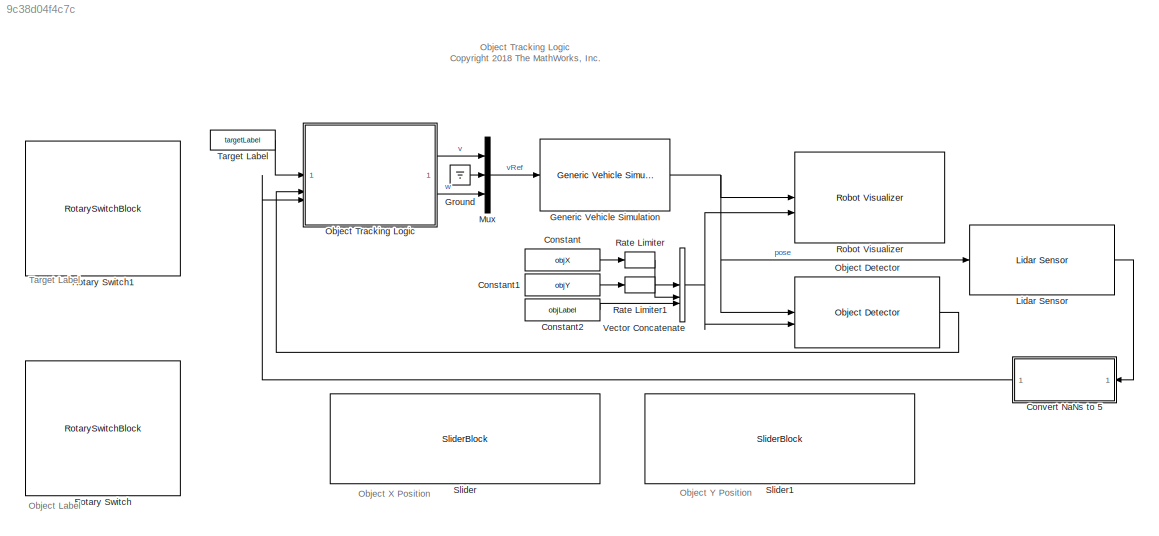
MODEL slx_9c38d04f4c7c
KIND model
CONFIG AbsTol = auto
CONFIG EnableMultiTasking = on
CONFIG FixedStep = 0.01
CONFIG MaxStep = auto
CONFIG MinStep = auto
CONFIG PreLoadFcn = % Simulation parameters\nload exampleMap\nsampleTime = 0.05;\n\n% Object Detector parameters\nobjX = 4;\nobjY = 4;\ntargetLabel = 1;\nobjLabel = 1;\nobjDetectorOffset = [0 0];\nobjDetectorAngle = 0;\nobjDetectorFOV = pi/3;\nobjDetectorRange = 5;\nobjDetectorColors = [1 0 0;0 1 0;0 0 1];\nobjDetectorMaxHits = 3;
CONFIG RelTol = 1e-3
CONFIG SampleTimeConstraint = Unconstrained
CONFIG SolverName = VariableStepAuto
CONFIG StartTime = 0.0
CONFIG StopTime = inf
BLOCK [Constant] Constant
  Value = objX
BLOCK [Constant] Constant1
  Value = objY
BLOCK [Constant] Constant2
  Value = objLabel
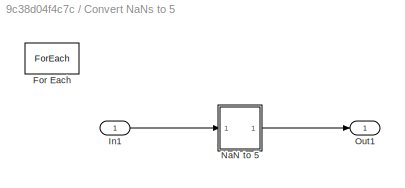
BLOCK [SubSystem] Convert NaNs to 5
  TreatAsAtomicUnit = on
BLOCK [ForEach] Convert NaNs to 5/For Each
  DisableCoverage = on
BLOCK [Inport] Convert NaNs to 5/In1
  Partition = on
  PartitionDimension = 1
  PartitionOffset = 0
  PartitionWidth = 1
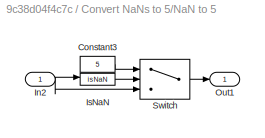
BLOCK [SubSystem] Convert NaNs to 5/NaN to 5
BLOCK [Constant] Convert NaNs to 5/NaN to 5/Constant3
  Value = 5
BLOCK [Inport] Convert NaNs to 5/NaN to 5/In2
BLOCK [RelationalOperator] Convert NaNs to 5/NaN to 5/IsNaN
  InputSameDT = off
  Operator = isNaN
  OutDataTypeStr = boolean
  RndMeth = Simplest
BLOCK [Outport] Convert NaNs to 5/NaN to 5/Out1
BLOCK [Switch] Convert NaNs to 5/NaN to 5/Switch
  Criteria = u2 ~= 0
  InputSameDT = off
  SaturateOnIntegerOverflow = off
BLOCK [Outport] Convert NaNs to 5/Out1
  ConcatenationDimension = 1
BLOCK [Reference] Generic Vehicle Simulation  REF=mobileRoboticsLib/Utilities/Generic Vehicle Simulation
  SourceBlock = mobileRoboticsLib/Utilities/Generic Vehicle Simulation
  SourceProductName = Mobile Robotics Simulation Toolbox
  SourceType = Generic Vehicle Simulation
BLOCK [Ground] Ground
BLOCK [Reference] Lidar Sensor  REF=mobileRoboticsLib/Environments/Lidar Sensor
  SourceBlock = mobileRoboticsLib/Environments/Lidar Sensor
  SourceProductName = Mobile Robotics Simulation Toolbox
  SourceType = LidarSensor
BLOCK [Mux] Mux
  DisplayOption = bar
  Inputs = 3
BLOCK [Reference] Object Detector  REF=mobileRoboticsLib/Environments/Object Detector
  SourceBlock = mobileRoboticsLib/Environments/Object Detector
  SourceProductName = Mobile Robotics Simulation Toolbox
  SourceType = ObjectDetector
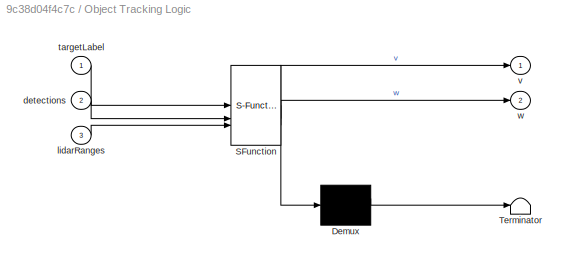
BLOCK [SubSystem] Object Tracking Logic
  ErrorFcn = Stateflow.Translate.translate
  PermitHierarchicalResolution = ExplicitOnly
  PortSchema = {"entries":[{"content":{"sides":[{"content":{"connectorIds":["In1","In3","In2"]},"type":"ConnectorPlacement.EquallySpacedRectSide","uuid":"378f4631-2ce8-4e2e-a911-17e83df8da92"},{"content":{"connectorIds":["Out1","Out2"],"side":"RIGHT"},"type":"ConnectorPlacement.EquallySpacedRectSide","uuid":"507bf614-3e7b-4f49-ae13-43723b647072"},{"content":{"side":"TOP"},"type":"ConnectorPlacement.EquallySpaced...<+241ch>
  SFBlockType = Chart
  TreatAsAtomicUnit = on
BLOCK [Demux] Object Tracking Logic/ Demux 
  Outputs = 1
BLOCK [S-Function] Object Tracking Logic/ SFunction 
  EnableBusSupport = on
  FunctionName = sf_sfun
  PortCounts = [3 3]
  SFcnIsStateOwnerBlock = off
  SFunctionDeploymentMode = off
  Tag = Stateflow S-Function 3
BLOCK [Terminator] Object Tracking Logic/ Terminator 
BLOCK [Inport] Object Tracking Logic/detections
  Port = 2
BLOCK [Inport] Object Tracking Logic/lidarRanges
  Port = 3
BLOCK [Inport] Object Tracking Logic/targetLabel
BLOCK [Outport] Object Tracking Logic/v
  VectorParamsAs1DForOutWhenUnconnected = off
BLOCK [Outport] Object Tracking Logic/w
  Port = 2
  VectorParamsAs1DForOutWhenUnconnected = off
BLOCK [RateLimiter] Rate Limiter
  InitialCondition = objX
  SampleTimeMode = inherited
BLOCK [RateLimiter] Rate Limiter1
  InitialCondition = objX
  SampleTimeMode = inherited
BLOCK [Reference] Robot Visualizer  REF=mobileRoboticsLib/Environments/Robot Visualizer
  Priority = 99
  SourceBlock = mobileRoboticsLib/Environments/Robot Visualizer
  SourceProductName = Mobile Robotics Simulation Toolbox
  SourceType = Visualizer2D
BLOCK [RotarySwitchBlock] Rotary Switch
  LabelPosition = Hide
BLOCK [RotarySwitchBlock] Rotary Switch1
  LabelPosition = Hide
BLOCK [SliderBlock] Slider
  ScaleMax = 13
BLOCK [SliderBlock] Slider1
  ScaleMax = 13
BLOCK [Constant] Target Label
  Value = targetLabel
BLOCK [Concatenate] Vector Concatenate
  ConcatenateDimension = 2
  Mode = Multidimensional array
  NumInputs = 3
ANNOTATION (root): Object Label
ANNOTATION (root): Object Tracking Logic <copyright redacted>
ANNOTATION (root): Object X Position
ANNOTATION (root): Object Y Position
ANNOTATION (root): Target Label
LINE Constant1:1 -> Rate Limiter1:1
LINE Constant2:1 -> Vector Concatenate:3
LINE Constant:1 -> Rate Limiter:1
LINE Convert NaNs to 5/In1:1 -> Convert NaNs to 5/NaN to 5:1
LINE Convert NaNs to 5/NaN to 5/Constant3:1 -> Convert NaNs to 5/NaN to 5/Switch:1
NET Convert NaNs to 5/NaN to 5/In2:1 -> Convert NaNs to 5/NaN to 5/IsNaN:1, Convert NaNs to 5/NaN to 5/Switch:3
LINE Convert NaNs to 5/NaN to 5/IsNaN:1 -> Convert NaNs to 5/NaN to 5/Switch:2
LINE Convert NaNs to 5/NaN to 5/Switch:1 -> Convert NaNs to 5/NaN to 5/Out1:1
LINE Convert NaNs to 5/NaN to 5:1 -> Convert NaNs to 5/Out1:1
LINE Convert NaNs to 5:1 -> Object Tracking Logic:3
NET Generic Vehicle Simulation:1 -> Lidar Sensor:1, Object Detector:1, Robot Visualizer:1
LINE Ground:1 -> Mux:2
LINE Lidar Sensor:1 -> Convert NaNs to 5:1
LINE Mux:1 -> Generic Vehicle Simulation:1
LINE Object Detector:1 -> Object Tracking Logic:2
LINE Object Tracking Logic:1 -> Mux:1
LINE Object Tracking Logic:2 -> Mux:3
LINE Rate Limiter1:1 -> Vector Concatenate:2
LINE Rate Limiter:1 -> Vector Concatenate:1
LINE Target Label:1 -> Object Tracking Logic:1
NET Vector Concatenate:1 -> Object Detector:2, Robot Visualizer:2
note: NET lines group one-source signal fan-out (src -> all destinations, sorted); 1:1 wires keep LINE
CHART Object Tracking Logic states=3 transitions=14
  STATE_LABEL 'TrackObject\nentry, during:\n[range,angle,valid] = findValidObject(targetLabel);\nif valid\n    count = 0;\nelse\n    count = count + 1;\nend\n'
  STATE_LABEL '% Set angular speed if\n% angle outside deadband\n[abs(angle) > pi/24]'
  STATE_LABEL '{w = 0;}'
  STATE_LABEL '% Proportional \n% control \n{w = 1.5*angle;}'
  STATE_LABEL '% Go forward if object is far\n[~isempty(detections)]'
  STATE_LABEL '{v = 0;}'
  STATE_LABEL '{v = (range - 1) * .7;}'
  STATE_LABEL 'SeekObject\nduring:\n% Go faster when there are less obstacles in the way\nv = sum(lidarRanges(2:5)) / 15;\n% Turn in the direction of less or further obstacles\nw = ((lidarRanges(6) + lidarRanges(5) + lidarRanges(4)) - (lidarRanges(3) + lidarRanges(2) + lidarRanges(1))) * .35;'
  STATE_LABEL '[dist,ang,flag] = findValidObject(label)'
  STATE_LABEL 'SCRIPT:\nfunction [dist,ang,flag] = findValidObject(label)\n% Finds the distance (dist) and angle (ang) of the nearest valid\n% object detected. If an object is found, the (flag) output is true.\n\n% Initialize\nflag = false;\ndist = 0;\nang = 0;\n\nif ~isempty(detections)\n    % Loop through all detections\n    for idx = 1:size(detections,1)\n        % If a detection matching the target label is found, \n     ...<+230ch>'
CHART  states=0 transitions=0
